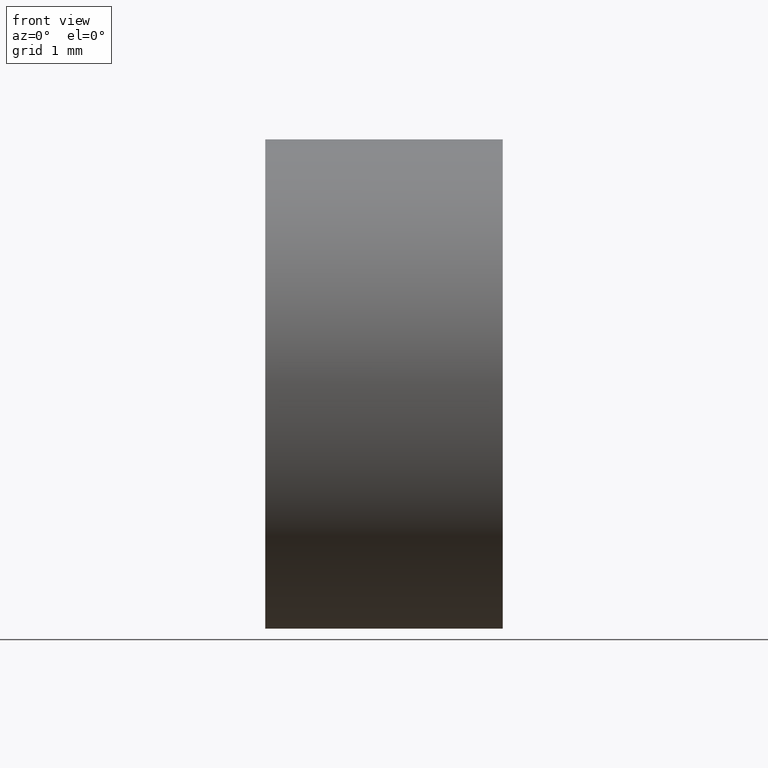
[diagram: clean part render]
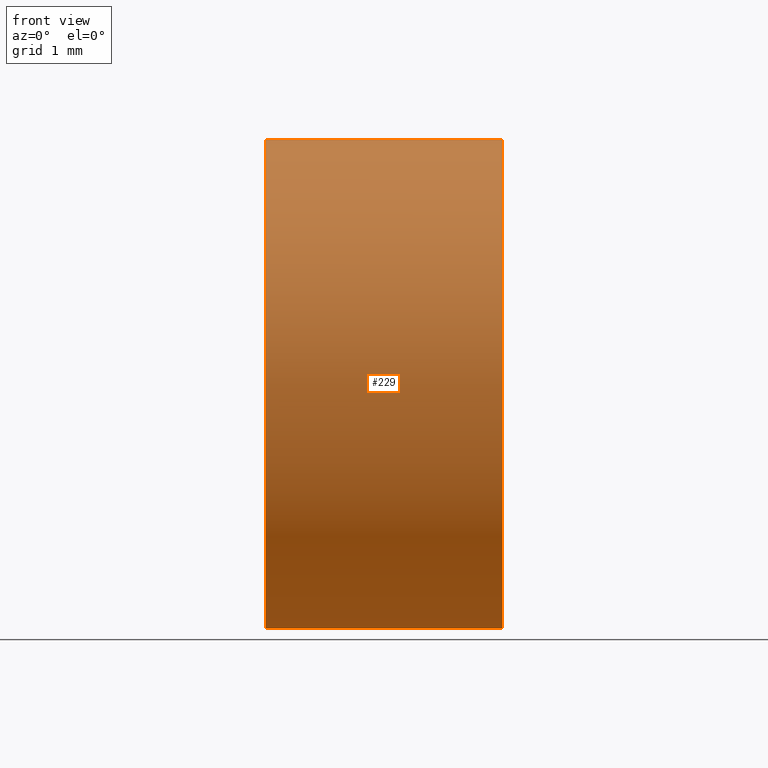
[diagram: same view with one face highlighted and labeled with its STEP entity id]
A machine part, front view. The second image highlights one B-rep face of the part: STEP entity #229.
In plain terms, the highlighted cylindrical surface (partial cylindrical patch) has radius 3.15 mm, axis along (-1, -0, -0).
Its self-contained STEP definition (entity closure, byte-faithful):
#1 = VERTEX_POINT ( 'NONE', #31 ) ;
#4 = CIRCLE ( 'NONE', #230, 3.150000000000001700 ) ;
#7 = DIRECTION ( 'NONE',  ( -1.000000000000000000, -0.0000000000000000000, -0.0000000000000000000 ) ) ;
#8 = DIRECTION ( 'NONE',  ( -1.000000000000000000, -0.0000000000000000000, -0.0000000000000000000 ) ) ;
#9 = VERTEX_POINT ( 'NONE', #139 ) ;
#23 = VERTEX_POINT ( 'NONE', #208 ) ;
#27 = CARTESIAN_POINT ( 'NONE',  ( 22.48177749438590200, 13.04452057459747900, 3.150000000000001700 ) ) ;
#30 = CARTESIAN_POINT ( 'NONE',  ( 22.48177749438590200, 13.04452057459747900, 0.0000000000000000000 ) ) ;
#31 = CARTESIAN_POINT ( 'NONE',  ( 22.48177749438590200, 9.894520574597480700, -3.857637417314164200E-016 ) ) ;
#32 = DIRECTION ( 'NONE',  ( -1.000000000000000000, -0.0000000000000000000, -0.0000000000000000000 ) ) ;
#44 = FACE_OUTER_BOUND ( 'NONE', #96, .T. ) ;
#45 = AXIS2_PLACEMENT_3D ( 'NONE', #77, #162, #59 ) ;
#47 = ORIENTED_EDGE ( 'NONE', *, *, #82, .T. ) ;
#48 = VERTEX_POINT ( 'NONE', #27 ) ;
#53 = DIRECTION ( 'NONE',  ( 0.0000000000000000000, 0.0000000000000000000, 1.000000000000000000 ) ) ;
#55 = CARTESIAN_POINT ( 'NONE',  ( 21.22493055706841100, 13.04452057459747900, 3.150000000000001700 ) ) ;
#56 = DIRECTION ( 'NONE',  ( -1.000000000000000000, -0.0000000000000000000, -0.0000000000000000000 ) ) ;
#59 = DIRECTION ( 'NONE',  ( 0.0000000000000000000, 0.0000000000000000000, 1.000000000000000000 ) ) ;
#64 = CIRCLE ( 'NONE', #65, 3.150000000000001700 ) ;
#65 = AXIS2_PLACEMENT_3D ( 'NONE', #30, #7, #157 ) ;
#69 = DIRECTION ( 'NONE',  ( 0.0000000000000000000, 0.0000000000000000000, 1.000000000000000000 ) ) ;
#70 = CARTESIAN_POINT ( 'NONE',  ( 22.48177749438590200, 13.04452057459747900, -3.150000000000001700 ) ) ;
#77 = CARTESIAN_POINT ( 'NONE',  ( 21.22493055706841100, 13.04452057459747900, 0.0000000000000000000 ) ) ;
#81 = EDGE_CURVE ( 'NONE', #23, #128, #163, .T. ) ;
#82 = EDGE_CURVE ( 'NONE', #9, #48, #170, .T. ) ;
#84 = VECTOR ( 'NONE', #8, 1000.000000000000000 ) ;
#85 = CARTESIAN_POINT ( 'NONE',  ( 25.54192824910646200, 13.04452057459747900, 0.0000000000000000000 ) ) ;
#95 = EDGE_CURVE ( 'NONE', #136, #9, #149, .T. ) ;
#96 = EDGE_LOOP ( 'NONE', ( #130, #112, #173, #47, #221, #172 ) ) ;
#100 = EDGE_CURVE ( 'NONE', #23, #136, #219, .T. ) ;
#108 = CARTESIAN_POINT ( 'NONE',  ( 21.22493055706841100, 13.04452057459747900, -3.150000000000001700 ) ) ;
#112 = ORIENTED_EDGE ( 'NONE', *, *, #100, .T. ) ;
#113 = AXIS2_PLACEMENT_3D ( 'NONE', #225, #138, #121 ) ;
#121 = DIRECTION ( 'NONE',  ( 0.0000000000000000000, 0.0000000000000000000, 1.000000000000000000 ) ) ;
#128 = VERTEX_POINT ( 'NONE', #70 ) ;
#130 = ORIENTED_EDGE ( 'NONE', *, *, #81, .F. ) ;
#133 = EDGE_CURVE ( 'NONE', #1, #48, #4, .T. ) ;
#135 = AXIS2_PLACEMENT_3D ( 'NONE', #85, #32, #53 ) ;
#136 = VERTEX_POINT ( 'NONE', #189 ) ;
#138 = DIRECTION ( 'NONE',  ( -1.000000000000000000, -0.0000000000000000000, -0.0000000000000000000 ) ) ;
#139 = CARTESIAN_POINT ( 'NONE',  ( 25.54192824910646200, 13.04452057459747900, 3.150000000000001700 ) ) ;
#149 = CIRCLE ( 'NONE', #113, 3.150000000000001700 ) ;
#157 = DIRECTION ( 'NONE',  ( 0.0000000000000000000, 0.0000000000000000000, 1.000000000000000000 ) ) ;
#159 = DIRECTION ( 'NONE',  ( -1.000000000000000000, -0.0000000000000000000, -0.0000000000000000000 ) ) ;
#161 = CARTESIAN_POINT ( 'NONE',  ( 22.48177749438590200, 13.04452057459747900, 0.0000000000000000000 ) ) ;
#162 = DIRECTION ( 'NONE',  ( -1.000000000000000000, -0.0000000000000000000, -0.0000000000000000000 ) ) ;
#163 = LINE ( 'NONE', #108, #183 ) ;
#170 = LINE ( 'NONE', #55, #84 ) ;
#172 = ORIENTED_EDGE ( 'NONE', *, *, #184, .F. ) ;
#173 = ORIENTED_EDGE ( 'NONE', *, *, #95, .T. ) ;
#183 = VECTOR ( 'NONE', #159, 1000.000000000000000 ) ;
#184 = EDGE_CURVE ( 'NONE', #128, #1, #64, .T. ) ;
#187 = CYLINDRICAL_SURFACE ( 'NONE', #45, 3.150000000000001700 ) ;
#189 = CARTESIAN_POINT ( 'NONE',  ( 25.54192824910646200, 9.894520574597477100, -3.857637417314163700E-016 ) ) ;
#208 = CARTESIAN_POINT ( 'NONE',  ( 25.54192824910646200, 13.04452057459747900, -3.150000000000001700 ) ) ;
#219 = CIRCLE ( 'NONE', #135, 3.150000000000001700 ) ;
#221 = ORIENTED_EDGE ( 'NONE', *, *, #133, .F. ) ;
#225 = CARTESIAN_POINT ( 'NONE',  ( 25.54192824910646200, 13.04452057459747900, 0.0000000000000000000 ) ) ;
#229 = ADVANCED_FACE ( 'NONE', ( #44 ), #187, .T. ) ;
#230 = AXIS2_PLACEMENT_3D ( 'NONE', #161, #56, #69 ) ;